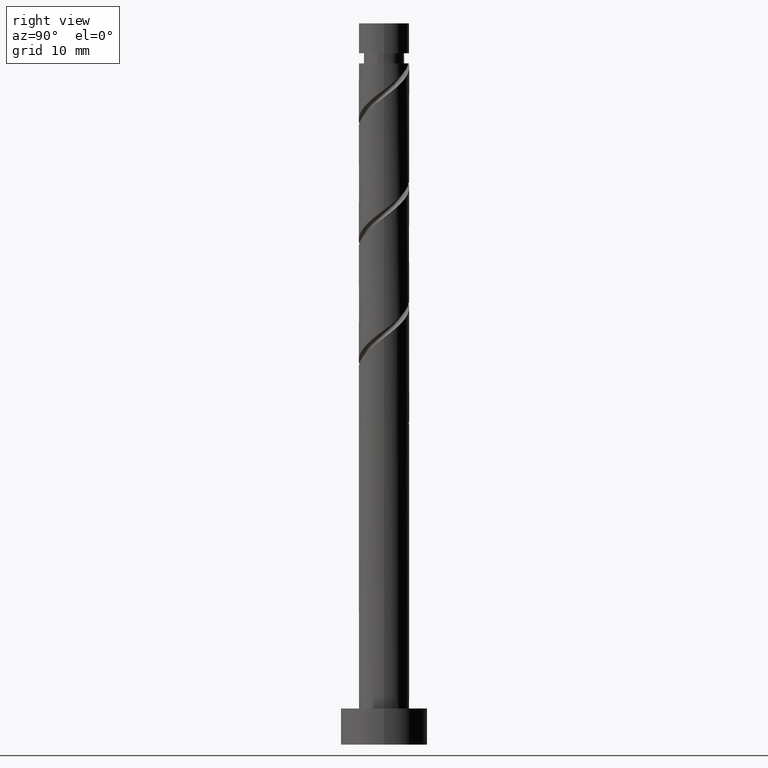
[diagram: clean part render]
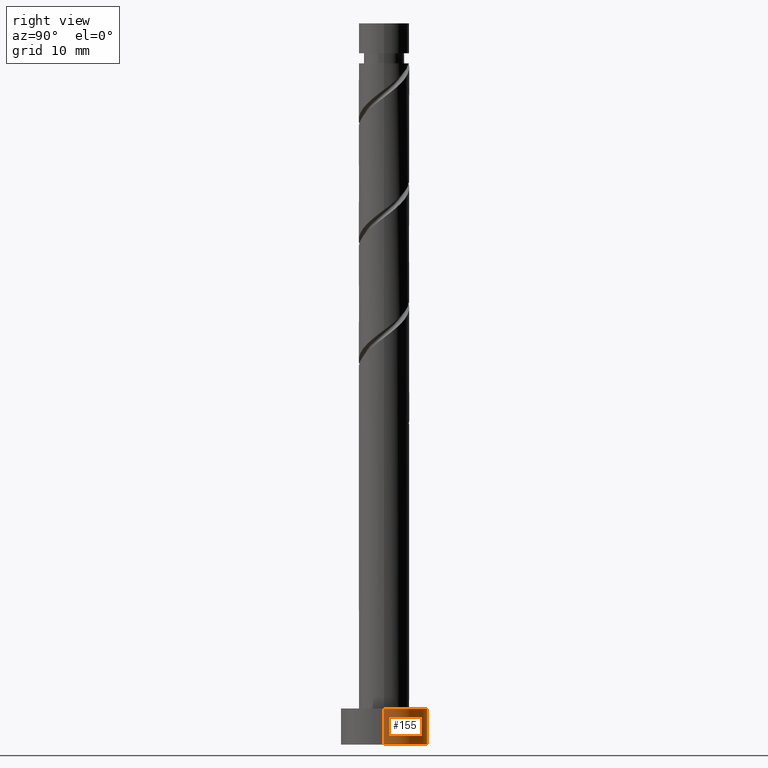
[diagram: same view with one face highlighted and labeled with its STEP entity id]
A machine part, right view. The second image highlights one B-rep face of the part: STEP entity #155.
In plain terms, the highlighted cylindrical surface (partial cylindrical patch) has radius 6 mm, axis along (-0, -0, -1).
Its self-contained STEP definition (entity closure, byte-faithful):
#14 = DIRECTION ( 'NONE',  ( -0.000000000000000000, -0.000000000000000000, -1.000000000000000000 ) ) ;
#108 = DIRECTION ( 'NONE',  ( -0.000000000000000000, -0.000000000000000000, -1.000000000000000000 ) ) ;
#124 = ORIENTED_EDGE ( 'NONE', *, *, #845, .F. ) ;
#125 = CARTESIAN_POINT ( 'NONE',  ( 6.000000000000000888, 7.347880794884120722E-16, 0.000000000000000000 ) ) ;
#155 = ADVANCED_FACE ( 'NONE', ( #317 ), #1327, .T. ) ;
#193 = CARTESIAN_POINT ( 'NONE',  ( 6.000000000000000888, 7.347880794884120722E-16, 5.000000000000000000 ) ) ;
#252 = DIRECTION ( 'NONE',  ( 1.000000000000000000, 0.000000000000000000, 0.000000000000000000 ) ) ;
#317 = FACE_OUTER_BOUND ( 'NONE', #1269, .T. ) ;
#420 = DIRECTION ( 'NONE',  ( -0.000000000000000000, -0.000000000000000000, -1.000000000000000000 ) ) ;
#435 = LINE ( 'NONE', #1120, #768 ) ;
#449 = CARTESIAN_POINT ( 'NONE',  ( 0.000000000000000000, 0.000000000000000000, 5.000000000000000000 ) ) ;
#512 = VERTEX_POINT ( 'NONE', #1123 ) ;
#609 = AXIS2_PLACEMENT_3D ( 'NONE', #449, #1010, #897 ) ;
#692 = VERTEX_POINT ( 'NONE', #193 ) ;
#718 = CIRCLE ( 'NONE', #609, 6.000000000000000888 ) ;
#763 = DIRECTION ( 'NONE',  ( -1.000000000000000000, 0.000000000000000000, 0.000000000000000000 ) ) ;
#768 = VECTOR ( 'NONE', #108, 1000.000000000000000 ) ;
#779 = CARTESIAN_POINT ( 'NONE',  ( 0.000000000000000000, 0.000000000000000000, 5.000000000000000000 ) ) ;
#793 = VECTOR ( 'NONE', #14, 1000.000000000000000 ) ;
#845 = EDGE_CURVE ( 'NONE', #692, #1014, #718, .T. ) ;
#897 = DIRECTION ( 'NONE',  ( 1.000000000000000000, 0.000000000000000000, 0.000000000000000000 ) ) ;
#929 = EDGE_CURVE ( 'NONE', #692, #1252, #435, .T. ) ;
#1010 = DIRECTION ( 'NONE',  ( 0.000000000000000000, 0.000000000000000000, 1.000000000000000000 ) ) ;
#1014 = VERTEX_POINT ( 'NONE', #1356 ) ;
#1045 = CARTESIAN_POINT ( 'NONE',  ( -6.000000000000000888, 0.000000000000000000, 5.000000000000000000 ) ) ;
#1055 = LINE ( 'NONE', #1045, #793 ) ;
#1120 = CARTESIAN_POINT ( 'NONE',  ( 6.000000000000000888, 7.347880794884120722E-16, 5.000000000000000000 ) ) ;
#1123 = CARTESIAN_POINT ( 'NONE',  ( -6.000000000000000888, 0.000000000000000000, 0.000000000000000000 ) ) ;
#1161 = CIRCLE ( 'NONE', #1364, 6.000000000000000888 ) ;
#1184 = ORIENTED_EDGE ( 'NONE', *, *, #929, .T. ) ;
#1243 = ORIENTED_EDGE ( 'NONE', *, *, #1422, .F. ) ;
#1252 = VERTEX_POINT ( 'NONE', #125 ) ;
#1263 = ORIENTED_EDGE ( 'NONE', *, *, #1410, .T. ) ;
#1269 = EDGE_LOOP ( 'NONE', ( #124, #1184, #1263, #1243 ) ) ;
#1296 = DIRECTION ( 'NONE',  ( 0.000000000000000000, 0.000000000000000000, 1.000000000000000000 ) ) ;
#1327 = CYLINDRICAL_SURFACE ( 'NONE', #1328, 6.000000000000000888 ) ;
#1328 = AXIS2_PLACEMENT_3D ( 'NONE', #779, #420, #763 ) ;
#1356 = CARTESIAN_POINT ( 'NONE',  ( -6.000000000000000888, 0.000000000000000000, 5.000000000000000000 ) ) ;
#1364 = AXIS2_PLACEMENT_3D ( 'NONE', #1385, #1296, #252 ) ;
#1385 = CARTESIAN_POINT ( 'NONE',  ( 0.000000000000000000, 0.000000000000000000, 0.000000000000000000 ) ) ;
#1410 = EDGE_CURVE ( 'NONE', #1252, #512, #1161, .T. ) ;
#1422 = EDGE_CURVE ( 'NONE', #1014, #512, #1055, .T. ) ;